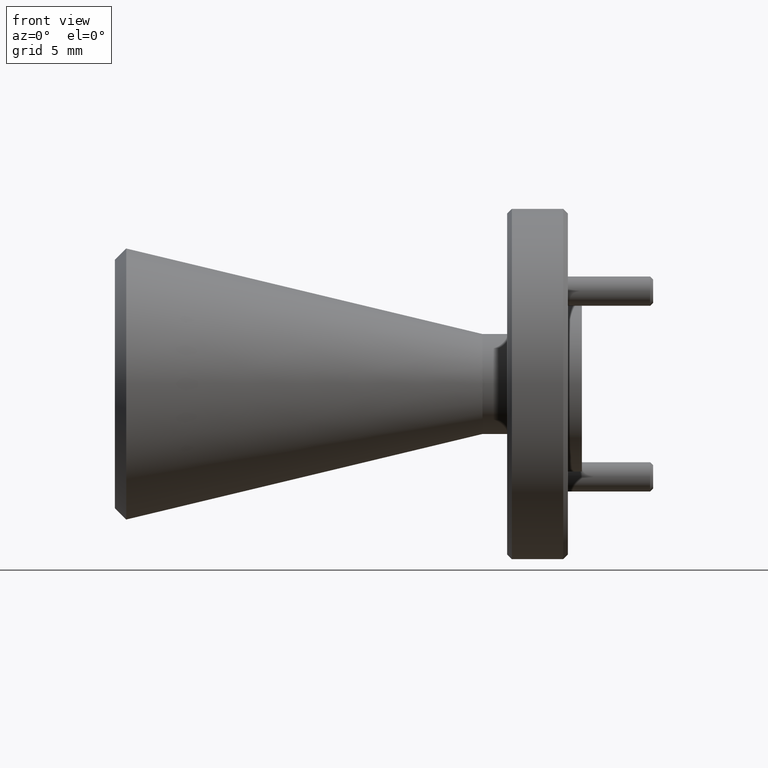
[diagram: clean part render]
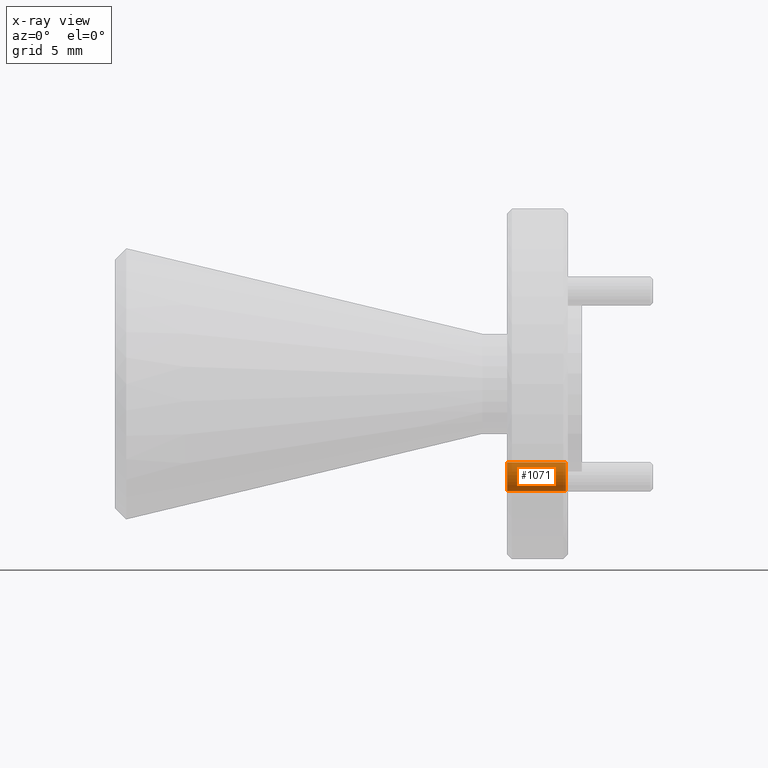
[diagram: x-ray — body ghosted, one internal face saturated and labeled with its STEP entity id]
A machine part, front view, then the same camera in x-ray: the body is ghosted and one INTERNAL B-rep face — a face not visible from any outside direction — is saturated and labeled: STEP entity #1071.
In plain terms, the highlighted cylindrical surface (edge-blend (fillet) strip) has radius 0.781 mm, axis along (1, -0, -0).
Its self-contained STEP definition (entity closure, byte-faithful):
#57 = CARTESIAN_POINT ( 'NONE',  ( -0.1600000000000000000, 0.1988737822087164900, -0.1681237822087165400 ) ) ;
#107 = CARTESIAN_POINT ( 'NONE',  ( -0.02999999999999999500, 0.1988737822087164900, -0.1988737822087165200 ) ) ;
#113 = DIRECTION ( 'NONE',  ( -1.000000000000000000, 0.0000000000000000000, 0.0000000000000000000 ) ) ;
#116 = DIRECTION ( 'NONE',  ( 1.000000000000000000, -0.0000000000000000000, -0.0000000000000000000 ) ) ;
#160 = EDGE_CURVE ( 'NONE', #943, #401, #276, .T. ) ;
#165 = LINE ( 'NONE', #334, #517 ) ;
#179 = ORIENTED_EDGE ( 'NONE', *, *, #230, .F. ) ;
#216 = CYLINDRICAL_SURFACE ( 'NONE', #1154, 0.03074999999999997200 ) ;
#230 = EDGE_CURVE ( 'NONE', #943, #467, #165, .T. ) ;
#276 = CIRCLE ( 'NONE', #1549, 0.03074999999999997200 ) ;
#298 = DIRECTION ( 'NONE',  ( 0.0000000000000000000, 0.0000000000000000000, -1.000000000000000000 ) ) ;
#315 = DIRECTION ( 'NONE',  ( 1.000000000000000000, -0.0000000000000000000, -0.0000000000000000000 ) ) ;
#334 = CARTESIAN_POINT ( 'NONE',  ( -0.02999999999999999500, 0.1988737822087164900, -0.2296237822087164900 ) ) ;
#379 = FACE_OUTER_BOUND ( 'NONE', #2044, .T. ) ;
#401 = VERTEX_POINT ( 'NONE', #57 ) ;
#440 = CARTESIAN_POINT ( 'NONE',  ( -0.1600000000000000000, 0.1988737822087164900, -0.1988737822087165200 ) ) ;
#467 = VERTEX_POINT ( 'NONE', #1582 ) ;
#517 = VECTOR ( 'NONE', #841, 39.37007874015748100 ) ;
#637 = AXIS2_PLACEMENT_3D ( 'NONE', #1315, #315, #298 ) ;
#670 = EDGE_CURVE ( 'NONE', #1323, #467, #1415, .T. ) ;
#689 = DIRECTION ( 'NONE',  ( 0.0000000000000000000, 0.0000000000000000000, -1.000000000000000000 ) ) ;
#841 = DIRECTION ( 'NONE',  ( 1.000000000000000000, -0.0000000000000000000, -0.0000000000000000000 ) ) ;
#843 = CARTESIAN_POINT ( 'NONE',  ( -0.03424999999999998900, 0.1988737822087164900, -0.1681237822087165400 ) ) ;
#907 = VECTOR ( 'NONE', #1607, 39.37007874015748100 ) ;
#943 = VERTEX_POINT ( 'NONE', #1264 ) ;
#1071 = ADVANCED_FACE ( 'NONE', ( #379 ), #216, .F. ) ;
#1089 = ORIENTED_EDGE ( 'NONE', *, *, #670, .T. ) ;
#1154 = AXIS2_PLACEMENT_3D ( 'NONE', #107, #116, #689 ) ;
#1200 = ORIENTED_EDGE ( 'NONE', *, *, #160, .T. ) ;
#1264 = CARTESIAN_POINT ( 'NONE',  ( -0.1600000000000000000, 0.1988737822087164900, -0.2296237822087164900 ) ) ;
#1284 = CARTESIAN_POINT ( 'NONE',  ( -0.02999999999999999500, 0.1988737822087164900, -0.1681237822087165400 ) ) ;
#1315 = CARTESIAN_POINT ( 'NONE',  ( -0.03424999999999998900, 0.1988737822087164900, -0.1988737822087165200 ) ) ;
#1323 = VERTEX_POINT ( 'NONE', #843 ) ;
#1365 = LINE ( 'NONE', #1284, #907 ) ;
#1415 = CIRCLE ( 'NONE', #637, 0.03074999999999997200 ) ;
#1549 = AXIS2_PLACEMENT_3D ( 'NONE', #440, #113, #1931 ) ;
#1582 = CARTESIAN_POINT ( 'NONE',  ( -0.03424999999999998900, 0.1988737822087164900, -0.2296237822087164900 ) ) ;
#1607 = DIRECTION ( 'NONE',  ( 1.000000000000000000, -0.0000000000000000000, -0.0000000000000000000 ) ) ;
#1625 = EDGE_CURVE ( 'NONE', #401, #1323, #1365, .T. ) ;
#1794 = ORIENTED_EDGE ( 'NONE', *, *, #1625, .T. ) ;
#1931 = DIRECTION ( 'NONE',  ( 0.0000000000000000000, 0.0000000000000000000, 1.000000000000000000 ) ) ;
#2044 = EDGE_LOOP ( 'NONE', ( #1200, #1794, #1089, #179 ) ) ;